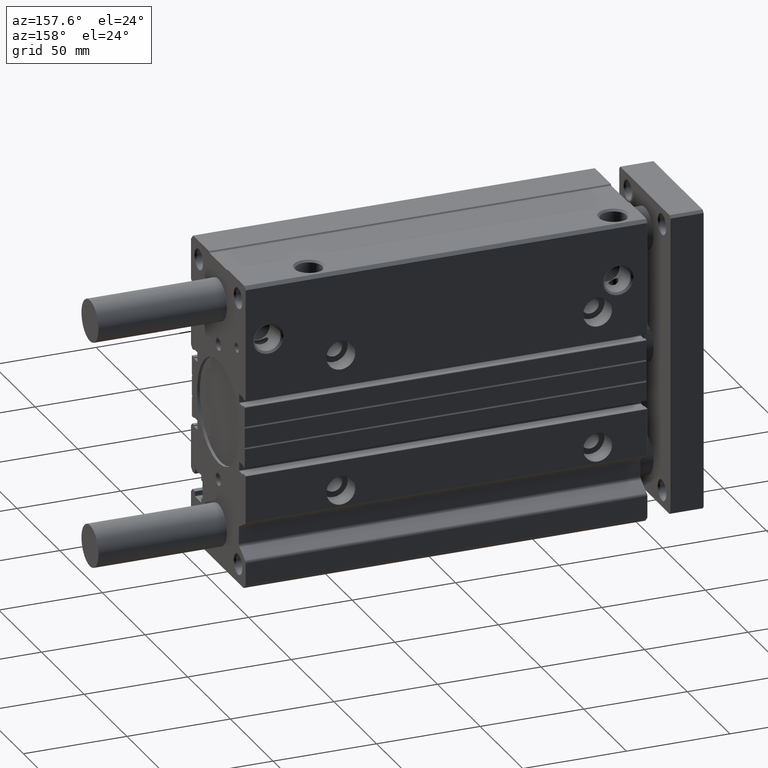
[diagram: clean part render]
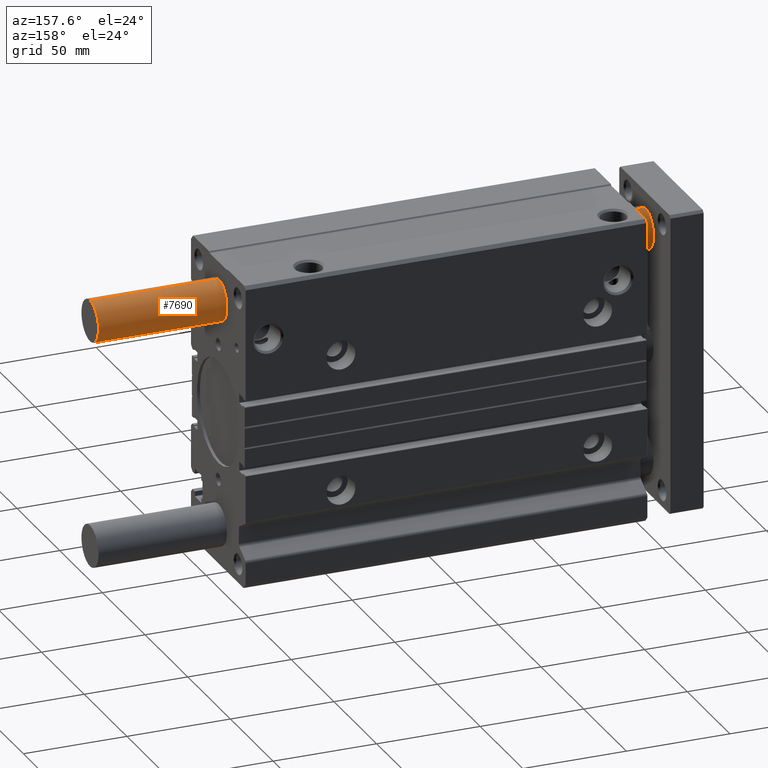
[diagram: same view with one face highlighted and labeled with its STEP entity id]
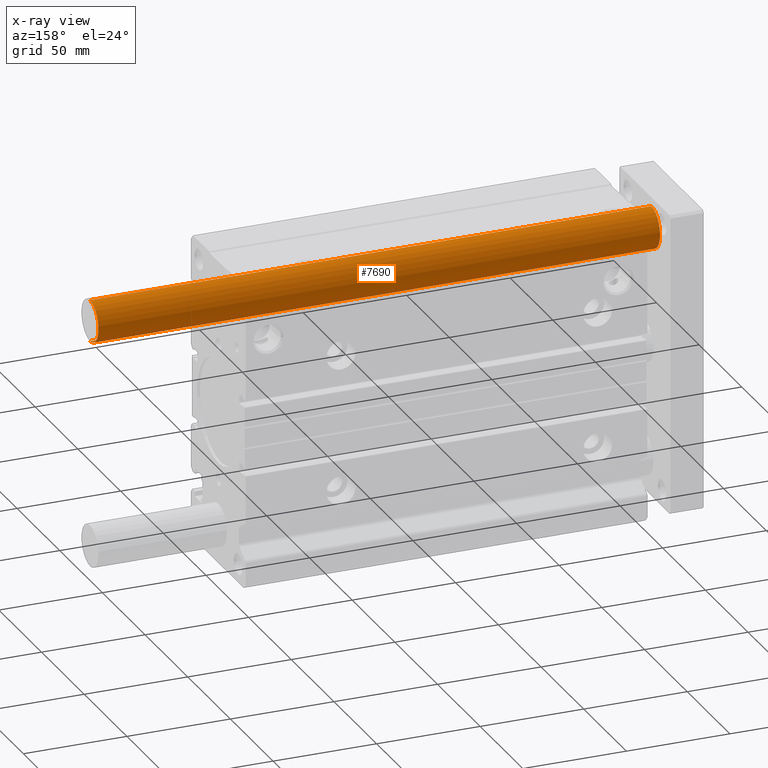
[diagram: x-ray of the same camera — body ghosted, the highlighted face saturated]
A machine part, auxiliary view. The second image highlights one B-rep face of the part: STEP entity #7690.
The next image is the same camera in x-ray: the body ghosted, the highlighted face saturated — about 0% of this face is hidden behind the body in this view.
In plain terms, the highlighted cylindrical surface (edge-blend (fillet) strip) has radius 10 mm, axis along (-1, -0, -0).
Its self-contained STEP definition (entity closure, byte-faithful):
#247 = DIRECTION ( 'NONE',  ( 1.000000000000000000, 0.000000000000000000, 0.000000000000000000 ) ) ;
#416 = FACE_OUTER_BOUND ( 'NONE', #1070, .T. ) ;
#1070 = EDGE_LOOP ( 'NONE', ( #1741, #8895, #1939, #6114 ) ) ;
#1277 = AXIS2_PLACEMENT_3D ( 'NONE', #2600, #8628, #8505 ) ;
#1522 = CARTESIAN_POINT ( 'NONE',  ( -15.19999999999999929, -3.918869757271529967E-16, 65.00000000000000000 ) ) ;
#1556 = VERTEX_POINT ( 'NONE', #7063 ) ;
#1630 = CARTESIAN_POINT ( 'NONE',  ( -15.19999999999999929, 8.327598234201999146E-16, 45.00000000000000000 ) ) ;
#1668 = AXIS2_PLACEMENT_3D ( 'NONE', #6119, #4931, #11006 ) ;
#1741 = ORIENTED_EDGE ( 'NONE', *, *, #4349, .F. ) ;
#1939 = ORIENTED_EDGE ( 'NONE', *, *, #5058, .T. ) ;
#2600 = CARTESIAN_POINT ( 'NONE',  ( 256.0000000000000000, -3.918869757271529967E-16, 55.00000000000000000 ) ) ;
#2870 = VERTEX_POINT ( 'NONE', #1630 ) ;
#3131 = AXIS2_PLACEMENT_3D ( 'NONE', #7351, #247, #4372 ) ;
#3345 = CIRCLE ( 'NONE', #3131, 10.00000000000000178 ) ;
#4349 = EDGE_CURVE ( 'NONE', #1556, #9338, #3345, .T. ) ;
#4372 = DIRECTION ( 'NONE',  ( 0.000000000000000000, 0.000000000000000000, -1.000000000000000000 ) ) ;
#4931 = DIRECTION ( 'NONE',  ( 1.000000000000000000, 0.000000000000000000, 0.000000000000000000 ) ) ;
#5058 = EDGE_CURVE ( 'NONE', #2870, #5366, #5714, .T. ) ;
#5122 = LINE ( 'NONE', #8221, #6590 ) ;
#5366 = VERTEX_POINT ( 'NONE', #1522 ) ;
#5714 = CIRCLE ( 'NONE', #1668, 10.00000000000000178 ) ;
#6114 = ORIENTED_EDGE ( 'NONE', *, *, #7963, .F. ) ;
#6119 = CARTESIAN_POINT ( 'NONE',  ( -15.19999999999999929, -3.918869757271529967E-16, 55.00000000000000000 ) ) ;
#6236 = DIRECTION ( 'NONE',  ( -1.000000000000000000, -0.000000000000000000, -0.000000000000000000 ) ) ;
#6590 = VECTOR ( 'NONE', #6236, 1000.000000000000000 ) ;
#7063 = CARTESIAN_POINT ( 'NONE',  ( 256.0000000000000000, 8.327598234201999146E-16, 45.00000000000000000 ) ) ;
#7298 = CARTESIAN_POINT ( 'NONE',  ( 256.0000000000000000, 8.327598234202001119E-16, 45.00000000000000000 ) ) ;
#7351 = CARTESIAN_POINT ( 'NONE',  ( 256.0000000000000000, -3.918869757271529967E-16, 55.00000000000000000 ) ) ;
#7690 = ADVANCED_FACE ( 'NONE', ( #416 ), #10480, .T. ) ;
#7923 = EDGE_CURVE ( 'NONE', #1556, #2870, #10147, .T. ) ;
#7963 = EDGE_CURVE ( 'NONE', #9338, #5366, #5122, .T. ) ;
#8167 = CARTESIAN_POINT ( 'NONE',  ( 256.0000000000000000, -3.918869757271529967E-16, 65.00000000000000000 ) ) ;
#8221 = CARTESIAN_POINT ( 'NONE',  ( 256.0000000000000000, -3.918869757271529967E-16, 65.00000000000000000 ) ) ;
#8505 = DIRECTION ( 'NONE',  ( 0.000000000000000000, 0.000000000000000000, 1.000000000000000000 ) ) ;
#8628 = DIRECTION ( 'NONE',  ( -1.000000000000000000, -0.000000000000000000, -0.000000000000000000 ) ) ;
#8895 = ORIENTED_EDGE ( 'NONE', *, *, #7923, .T. ) ;
#9324 = VECTOR ( 'NONE', #11326, 1000.000000000000000 ) ;
#9338 = VERTEX_POINT ( 'NONE', #8167 ) ;
#10147 = LINE ( 'NONE', #7298, #9324 ) ;
#10480 = CYLINDRICAL_SURFACE ( 'NONE', #1277, 10.00000000000000178 ) ;
#11006 = DIRECTION ( 'NONE',  ( 0.000000000000000000, 0.000000000000000000, -1.000000000000000000 ) ) ;
#11326 = DIRECTION ( 'NONE',  ( -1.000000000000000000, -0.000000000000000000, -0.000000000000000000 ) ) ;